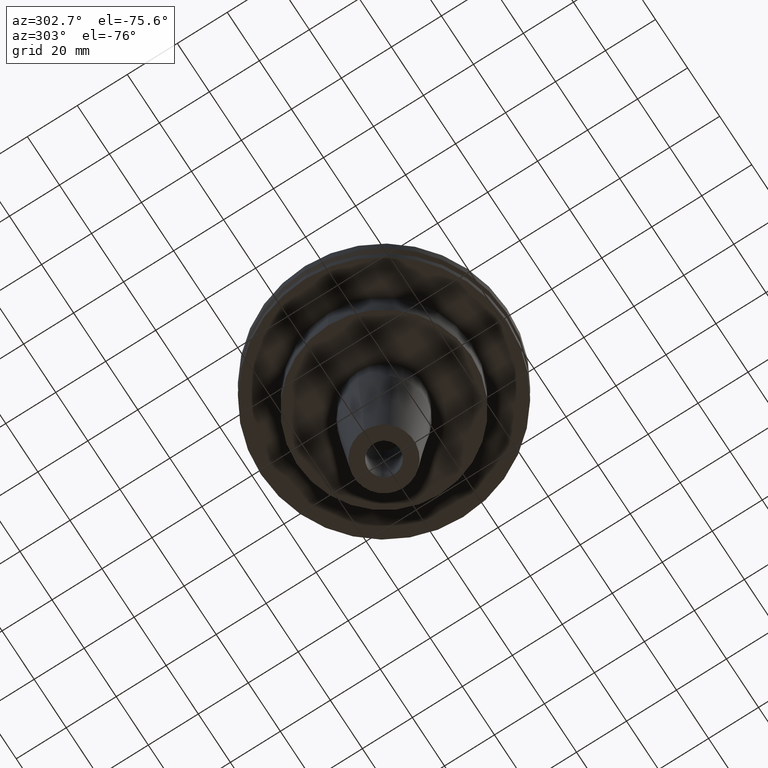
[diagram: clean part render]
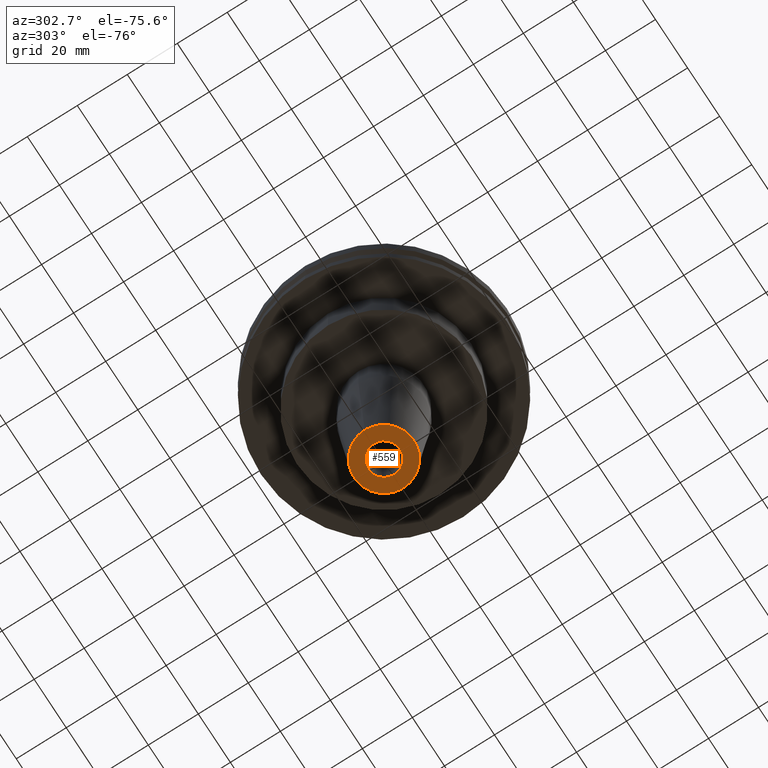
[diagram: same view with one face highlighted and labeled with its STEP entity id]
A machine part, auxiliary view. The second image highlights one B-rep face of the part: STEP entity #559.
In plain terms, the highlighted planar face has unit normal (0, -0, 1).
Its self-contained STEP definition (entity closure, byte-faithful):
#5 = DIRECTION ( 'NONE',  ( 1.000000000000000000, 0.000000000000000000, 0.000000000000000000 ) ) ;
#10 = DIRECTION ( 'NONE',  ( -0.000000000000000000, -0.000000000000000000, 1.000000000000000000 ) ) ;
#21 = DIRECTION ( 'NONE',  ( 1.000000000000000000, 0.000000000000000000, 0.000000000000000000 ) ) ;
#43 = CIRCLE ( 'NONE', #608, 12.00000000000000000 ) ;
#47 = VERTEX_POINT ( 'NONE', #768 ) ;
#51 = EDGE_CURVE ( 'NONE', #506, #47, #592, .T. ) ;
#69 = EDGE_CURVE ( 'NONE', #47, #506, #206, .T. ) ;
#73 = AXIS2_PLACEMENT_3D ( 'NONE', #142, #457, #5 ) ;
#137 = FACE_BOUND ( 'NONE', #374, .T. ) ;
#142 = CARTESIAN_POINT ( 'NONE',  ( 0.000000000000000000, 0.000000000000000000, -101.5999999999999943 ) ) ;
#150 = CARTESIAN_POINT ( 'NONE',  ( 6.350000000000001421, 0.000000000000000000, -101.5999999999999943 ) ) ;
#206 = CIRCLE ( 'NONE', #625, 6.350000000000001421 ) ;
#213 = DIRECTION ( 'NONE',  ( 1.000000000000000000, 0.000000000000000000, 0.000000000000000000 ) ) ;
#223 = VERTEX_POINT ( 'NONE', #503 ) ;
#241 = ORIENTED_EDGE ( 'NONE', *, *, #51, .T. ) ;
#242 = AXIS2_PLACEMENT_3D ( 'NONE', #349, #295, #620 ) ;
#245 = ORIENTED_EDGE ( 'NONE', *, *, #511, .F. ) ;
#272 = CARTESIAN_POINT ( 'NONE',  ( 0.000000000000000000, 12.00000000000000000, -101.5999999999999943 ) ) ;
#295 = DIRECTION ( 'NONE',  ( -0.000000000000000000, -0.000000000000000000, 1.000000000000000000 ) ) ;
#310 = CIRCLE ( 'NONE', #242, 12.00000000000000000 ) ;
#349 = CARTESIAN_POINT ( 'NONE',  ( 0.000000000000000000, 0.000000000000000000, -101.5999999999999943 ) ) ;
#374 = EDGE_LOOP ( 'NONE', ( #241, #417 ) ) ;
#417 = ORIENTED_EDGE ( 'NONE', *, *, #69, .T. ) ;
#437 = EDGE_CURVE ( 'NONE', #648, #223, #43, .T. ) ;
#457 = DIRECTION ( 'NONE',  ( -0.000000000000000000, -0.000000000000000000, 1.000000000000000000 ) ) ;
#459 = DIRECTION ( 'NONE',  ( 1.000000000000000000, 0.000000000000000000, 0.000000000000000000 ) ) ;
#464 = FACE_OUTER_BOUND ( 'NONE', #774, .T. ) ;
#503 = CARTESIAN_POINT ( 'NONE',  ( -12.00000000000000000, 1.714505518806294638E-15, -101.5999999999999943 ) ) ;
#506 = VERTEX_POINT ( 'NONE', #150 ) ;
#511 = EDGE_CURVE ( 'NONE', #223, #648, #310, .T. ) ;
#528 = PLANE ( 'NONE',  #758 ) ;
#559 = ADVANCED_FACE ( 'NONE', ( #464, #137 ), #528, .F. ) ;
#592 = CIRCLE ( 'NONE', #73, 6.350000000000001421 ) ;
#605 = DIRECTION ( 'NONE',  ( 0.000000000000000000, -0.000000000000000000, 1.000000000000000000 ) ) ;
#608 = AXIS2_PLACEMENT_3D ( 'NONE', #747, #676, #21 ) ;
#612 = ORIENTED_EDGE ( 'NONE', *, *, #437, .F. ) ;
#620 = DIRECTION ( 'NONE',  ( 1.000000000000000000, 0.000000000000000000, 0.000000000000000000 ) ) ;
#625 = AXIS2_PLACEMENT_3D ( 'NONE', #736, #10, #213 ) ;
#648 = VERTEX_POINT ( 'NONE', #784 ) ;
#676 = DIRECTION ( 'NONE',  ( -0.000000000000000000, -0.000000000000000000, 1.000000000000000000 ) ) ;
#736 = CARTESIAN_POINT ( 'NONE',  ( 0.000000000000000000, 0.000000000000000000, -101.5999999999999943 ) ) ;
#747 = CARTESIAN_POINT ( 'NONE',  ( 0.000000000000000000, 0.000000000000000000, -101.5999999999999943 ) ) ;
#758 = AXIS2_PLACEMENT_3D ( 'NONE', #272, #605, #459 ) ;
#768 = CARTESIAN_POINT ( 'NONE',  ( -6.350000000000001421, 7.776507174585697093E-16, -101.5999999999999943 ) ) ;
#774 = EDGE_LOOP ( 'NONE', ( #612, #245 ) ) ;
#784 = CARTESIAN_POINT ( 'NONE',  ( 12.00000000000000000, 0.000000000000000000, -101.5999999999999943 ) ) ;